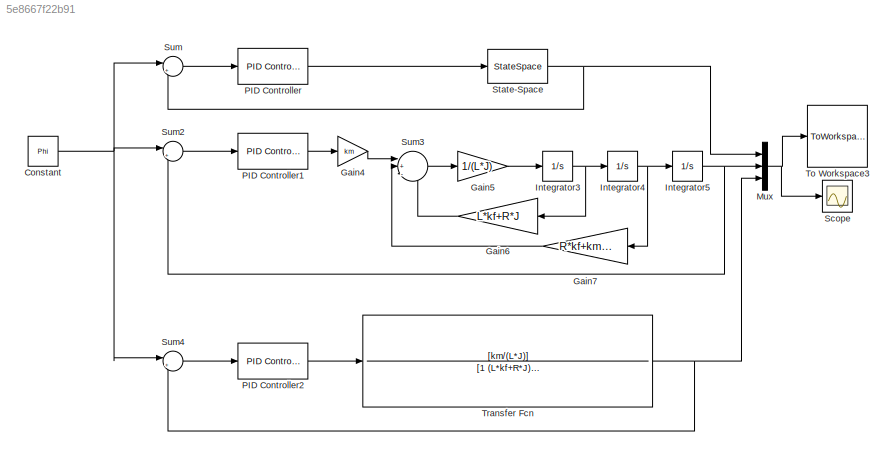
MODEL slx_5e8667f22b91
KIND model
CONFIG AbsTol = auto
CONFIG EnableMultiTasking = off
CONFIG FixedStep = auto
CONFIG MaxStep = auto
CONFIG MinStep = auto
CONFIG RelTol = 1e-3
CONFIG SampleTimeConstraint = Unconstrained
CONFIG SolverName = VariableStepAuto
CONFIG StartTime = 0.0
CONFIG StopTime = 5.0
BLOCK [Constant] Constant
  Value = Phi
BLOCK [Gain] Gain4
  Gain = km
BLOCK [Gain] Gain5
  Gain = 1/(L*J)
BLOCK [Gain] Gain6
  Gain = L*kf+R*J
BLOCK [Gain] Gain7
  Gain = R*kf+km*ke
BLOCK [Integrator] Integrator3
  Ports = [1, 1]
BLOCK [Integrator] Integrator4
  Ports = [1, 1]
BLOCK [Integrator] Integrator5
  Ports = [1, 1]
BLOCK [Mux] Mux
  DisplayOption = bar
  Inputs = 3
  Ports = [3, 1]
BLOCK [Reference] PID Controller  REF=pid_lib/PID Controller
  Ports = [1, 1]
  SourceBlock = pid_lib/PID Controller
  SourceProductBaseCode = SL
  SourceType = PID 1dof
BLOCK [Reference] PID Controller1  REF=pid_lib/PID Controller
  Ports = [1, 1]
  SourceBlock = pid_lib/PID Controller
  SourceProductBaseCode = SL
  SourceType = PID 1dof
BLOCK [Reference] PID Controller2  REF=pid_lib/PID Controller
  Ports = [1, 1]
  SourceBlock = pid_lib/PID Controller
  SourceProductBaseCode = SL
  SourceType = PID 1dof
BLOCK [Scope] Scope
  Floating = off
  NumInputPorts = 1
  Ports = [1]
  ScopeSpecificationString = Simulink.scopes.TimeScopeBlockCfg('CurrentConfiguration', extmgr.ConfigurationSet(extmgr.Configuration('Core','General UI',true),extmgr.Configuration('Core','Source UI',true),extmgr.Configuration('Sources','WiredSimulink',true),extmgr.Configuration('Visuals','Time Domain',true,'SerializedDisplays',{struct('MinYLimReal','-0.84918','MaxYLimReal','7.64263','YLabelReal','','MinYLimMag','0.00000','MaxY...<+1360ch>
BLOCK [StateSpace] State-Space
  A = A
  B = B
  C = C
  D = 0
  InitialCondition = 0
  Ports = [1, 1]
BLOCK [Sum] Sum
  Inputs = |+-
  Ports = [2, 1]
BLOCK [Sum] Sum2
  Inputs = |+-
  Ports = [2, 1]
BLOCK [Sum] Sum3
  Inputs = |+--
  Ports = [3, 1]
BLOCK [Sum] Sum4
  Inputs = |+-
  Ports = [2, 1]
BLOCK [ToWorkspace] To Workspace3
  MaxDataPoints = inf
  Ports = [1]
  SampleTime = -1
  Save2DSignal = 2-D array (concatenate along first dimension)
  VariableName = phi_out
BLOCK [TransferFcn] Transfer Fcn
  ContinuousStateAttributes = 'position'
  Denominator = [1 (L*kf+R*J)/(L*J) (R*kf+km*ke)/(L*J)  0]
  Numerator = [km/(L*J)]
NET Constant:1 -> Sum2:1, Sum4:1, Sum:1
LINE Gain4:1 -> Sum3:1
LINE Gain5:1 -> Integrator3:1
LINE Gain6:1 -> Sum3:3
LINE Gain7:1 -> Sum3:2
NET Integrator3:1 -> Gain6:1, Integrator4:1
NET Integrator4:1 -> Gain7:1, Integrator5:1
NET Integrator5:1 -> Mux:2, Sum2:2
NET Mux:1 -> Scope:1, To Workspace3:1
LINE PID Controller1:1 -> Gain4:1
LINE PID Controller2:1 -> Transfer Fcn:1
LINE PID Controller:1 -> State-Space:1
NET State-Space:1 -> Mux:1, Sum:2
LINE Sum2:1 -> PID Controller1:1
LINE Sum3:1 -> Gain5:1
LINE Sum4:1 -> PID Controller2:1
LINE Sum:1 -> PID Controller:1
NET Transfer Fcn:1 -> Mux:3, Sum4:2
note: NET lines group one-source signal fan-out (src -> all destinations, sorted); 1:1 wires keep LINE
